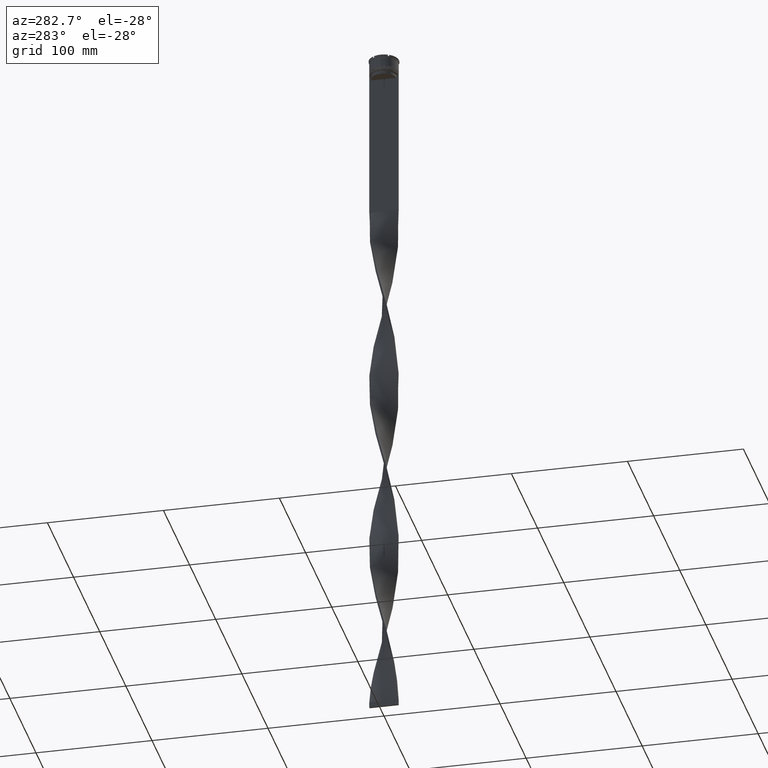
[diagram: clean part render]
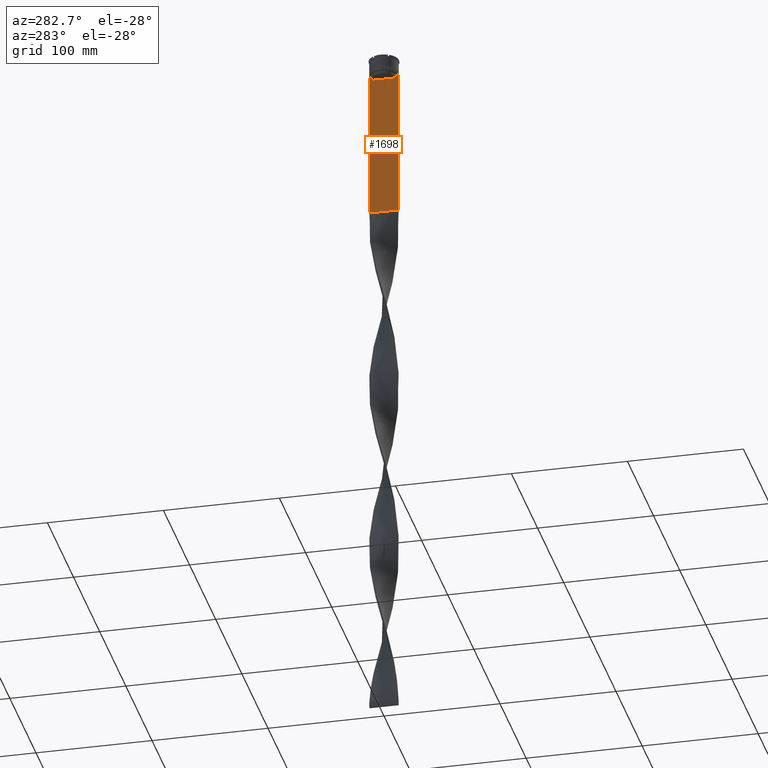
[diagram: same view with one face highlighted and labeled with its STEP entity id]
A machine part, auxiliary view. The second image highlights one B-rep face of the part: STEP entity #1698.
In plain terms, the highlighted planar face has unit normal (-1, 0, 0).
Its self-contained STEP definition (entity closure, byte-faithful):
#10 = CARTESIAN_POINT ( 'NONE',  ( -0.7499999999999997780, -12.50000000000000000, -14.00000000000000178 ) ) ;
#37 = CARTESIAN_POINT ( 'NONE',  ( -0.7499999999999997780, 10.87416663473574374, -14.50000000000000000 ) ) ;
#63 = CARTESIAN_POINT ( 'NONE',  ( -0.7499999999999997780, -11.37530219378809093, -14.00000000000000178 ) ) ;
#74 = CARTESIAN_POINT ( 'NONE',  ( -0.7499999999999997780, -10.87416663473574374, 0.000000000000000000 ) ) ;
#87 = ORIENTED_EDGE ( 'NONE', *, *, #4717, .T. ) ;
#120 = EDGE_CURVE ( 'NONE', #4119, #3851, #319, .T. ) ;
#124 = VECTOR ( 'NONE', #225, 1000.000000000000000 ) ;
#140 = FACE_OUTER_BOUND ( 'NONE', #1699, .T. ) ;
#175 = EDGE_CURVE ( 'NONE', #3188, #1463, #1265, .T. ) ;
#216 = VERTEX_POINT ( 'NONE', #2136 ) ;
#225 = DIRECTION ( 'NONE',  ( 0.000000000000000000, -1.000000000000000000, 0.000000000000000000 ) ) ;
#284 = ORIENTED_EDGE ( 'NONE', *, *, #1735, .F. ) ;
#297 = VERTEX_POINT ( 'NONE', #554 ) ;
#319 = B_SPLINE_CURVE_WITH_KNOTS ( 'NONE', 3,
 ( #3514, #2376, #824, #1994 ),
 .UNSPECIFIED., .F., .F.,
 ( 4, 4 ),
 ( 0.01936090553552769281, 0.02006881572333104116 ),
 .UNSPECIFIED. ) ;
#361 = ORIENTED_EDGE ( 'NONE', *, *, #2209, .F. ) ;
#428 = CARTESIAN_POINT ( 'NONE',  ( -0.7499999999999997780, -11.20826532207830439, -14.16667499063191471 ) ) ;
#552 = CARTESIAN_POINT ( 'NONE',  ( -0.7499999999999997780, 12.50000000000000000, 11.04495957273638673 ) ) ;
#554 = CARTESIAN_POINT ( 'NONE',  ( -0.7499999999999997780, 10.87416663473574019, -17.00000000000000000 ) ) ;
#589 = VECTOR ( 'NONE', #4731, 1000.000000000000000 ) ;
#624 = CARTESIAN_POINT ( 'NONE',  ( -0.7499999999999997780, 10.90000000000000213, -17.00000000000000000 ) ) ;
#695 = EDGE_CURVE ( 'NONE', #2607, #1962, #2332, .T. ) ;
#701 = CARTESIAN_POINT ( 'NONE',  ( -0.7499999999999997780, -11.37530219378809093, -14.00000000000000178 ) ) ;
#824 = CARTESIAN_POINT ( 'NONE',  ( -0.7499999999999997780, 11.04122051153452055, -14.33334204648729582 ) ) ;
#836 = VERTEX_POINT ( 'NONE', #2004 ) ;
#867 = LINE ( 'NONE', #2344, #1920 ) ;
#1105 = DIRECTION ( 'NONE',  ( 0.000000000000000000, 0.000000000000000000, -1.000000000000000000 ) ) ;
#1127 = ORIENTED_EDGE ( 'NONE', *, *, #1942, .F. ) ;
#1265 = LINE ( 'NONE', #2402, #3809 ) ;
#1288 = LINE ( 'NONE', #3485, #1369 ) ;
#1315 = DIRECTION ( 'NONE',  ( 0.000000000000000000, -1.000000000000000000, 0.000000000000000000 ) ) ;
#1355 = LINE ( 'NONE', #552, #4675 ) ;
#1369 = VECTOR ( 'NONE', #1315, 1000.000000000000000 ) ;
#1463 = VERTEX_POINT ( 'NONE', #3653 ) ;
#1571 = ORIENTED_EDGE ( 'NONE', *, *, #3029, .F. ) ;
#1582 = DIRECTION ( 'NONE',  ( -1.000000000000000000, 0.000000000000000000, 0.000000000000000000 ) ) ;
#1607 = EDGE_CURVE ( 'NONE', #2599, #216, #1288, .T. ) ;
#1632 = CARTESIAN_POINT ( 'NONE',  ( -0.7499999999999997780, -12.50000000000000000, 11.04495957273638673 ) ) ;
#1656 = DIRECTION ( 'NONE',  ( 0.000000000000000000, 0.000000000000000000, 1.000000000000000000 ) ) ;
#1698 = ADVANCED_FACE ( 'NONE', ( #140 ), #3541, .T. ) ;
#1699 = EDGE_LOOP ( 'NONE', ( #3531, #284, #2901, #87, #2386, #361, #1127, #3334, #2460, #4211, #4802, #1571 ) ) ;
#1704 = DIRECTION ( 'NONE',  ( 0.000000000000000000, 0.000000000000000000, -1.000000000000000000 ) ) ;
#1735 = EDGE_CURVE ( 'NONE', #216, #4119, #4758, .T. ) ;
#1828 = LINE ( 'NONE', #4059, #4290 ) ;
#1836 = AXIS2_PLACEMENT_3D ( 'NONE', #1632, #1582, #1656 ) ;
#1845 = LINE ( 'NONE', #10, #2400 ) ;
#1872 = CARTESIAN_POINT ( 'NONE',  ( -0.7499999999999997780, -12.50000000000000000, -14.00000000000000178 ) ) ;
#1920 = VECTOR ( 'NONE', #2738, 1000.000000000000000 ) ;
#1942 = EDGE_CURVE ( 'NONE', #836, #3474, #1845, .T. ) ;
#1956 = CARTESIAN_POINT ( 'NONE',  ( -0.7499999999999997780, -10.87416663473574019, -17.00000000000000000 ) ) ;
#1962 = VERTEX_POINT ( 'NONE', #3043 ) ;
#1994 = CARTESIAN_POINT ( 'NONE',  ( -0.7499999999999997780, 10.87416663473574374, -14.50000000000000000 ) ) ;
#2004 = CARTESIAN_POINT ( 'NONE',  ( -0.7499999999999997780, -12.37729776647553059, -14.00000000000000178 ) ) ;
#2067 = VECTOR ( 'NONE', #3749, 1000.000000000000000 ) ;
#2121 = EDGE_CURVE ( 'NONE', #1962, #2135, #3777, .T. ) ;
#2135 = VERTEX_POINT ( 'NONE', #701 ) ;
#2136 = CARTESIAN_POINT ( 'NONE',  ( -0.7499999999999997780, 12.37729776647553059, -14.00000000000000178 ) ) ;
#2209 = EDGE_CURVE ( 'NONE', #3474, #3188, #867, .T. ) ;
#2292 = CARTESIAN_POINT ( 'NONE',  ( -0.7499999999999997780, -11.04122051801870619, -14.33334204001847745 ) ) ;
#2332 = LINE ( 'NONE', #74, #2067 ) ;
#2344 = CARTESIAN_POINT ( 'NONE',  ( -0.7499999999999997780, -12.50000000000000000, 11.04495957273638673 ) ) ;
#2376 = CARTESIAN_POINT ( 'NONE',  ( -0.7499999999999997780, 11.20826531587977648, -14.16667499681701514 ) ) ;
#2386 = ORIENTED_EDGE ( 'NONE', *, *, #175, .F. ) ;
#2400 = VECTOR ( 'NONE', #3783, 1000.000000000000000 ) ;
#2402 = CARTESIAN_POINT ( 'NONE',  ( -0.7499999999999997780, -12.50000000000000000, -143.0000000000000284 ) ) ;
#2460 = ORIENTED_EDGE ( 'NONE', *, *, #2121, .F. ) ;
#2497 = LINE ( 'NONE', #624, #4446 ) ;
#2508 = CARTESIAN_POINT ( 'NONE',  ( -0.7499999999999997780, -12.50000000000000000, -14.00000000000000178 ) ) ;
#2599 = VERTEX_POINT ( 'NONE', #3846 ) ;
#2607 = VERTEX_POINT ( 'NONE', #1956 ) ;
#2697 = EDGE_CURVE ( 'NONE', #2135, #836, #3958, .T. ) ;
#2738 = DIRECTION ( 'NONE',  ( 0.000000000000000000, 0.000000000000000000, -1.000000000000000000 ) ) ;
#2901 = ORIENTED_EDGE ( 'NONE', *, *, #1607, .F. ) ;
#2936 = CARTESIAN_POINT ( 'NONE',  ( -0.7499999999999997780, -12.50000000000000000, -14.00000000000000178 ) ) ;
#3029 = EDGE_CURVE ( 'NONE', #3851, #297, #1828, .T. ) ;
#3043 = CARTESIAN_POINT ( 'NONE',  ( -0.7499999999999997780, -10.87416663473574374, -14.50000000000000000 ) ) ;
#3188 = VERTEX_POINT ( 'NONE', #4224 ) ;
#3334 = ORIENTED_EDGE ( 'NONE', *, *, #2697, .F. ) ;
#3474 = VERTEX_POINT ( 'NONE', #1872 ) ;
#3485 = CARTESIAN_POINT ( 'NONE',  ( -0.7499999999999997780, -12.50000000000000000, -14.00000000000000178 ) ) ;
#3514 = CARTESIAN_POINT ( 'NONE',  ( -0.7499999999999997780, 11.37530219378809093, -14.00000000000000178 ) ) ;
#3531 = ORIENTED_EDGE ( 'NONE', *, *, #120, .F. ) ;
#3541 = PLANE ( 'NONE',  #1836 ) ;
#3653 = CARTESIAN_POINT ( 'NONE',  ( -0.7499999999999997780, 12.50000000000000000, -143.0000000000000284 ) ) ;
#3749 = DIRECTION ( 'NONE',  ( -0.000000000000000000, -0.000000000000000000, 1.000000000000000000 ) ) ;
#3777 = B_SPLINE_CURVE_WITH_KNOTS ( 'NONE', 3,
 ( #4169, #2292, #428, #63 ),
 .UNSPECIFIED., .F., .F.,
 ( 4, 4 ),
 ( 0.05009718908159448147, 0.05081156920313960323 ),
 .UNSPECIFIED. ) ;
#3783 = DIRECTION ( 'NONE',  ( 0.000000000000000000, -1.000000000000000000, 0.000000000000000000 ) ) ;
#3809 = VECTOR ( 'NONE', #3907, 1000.000000000000000 ) ;
#3846 = CARTESIAN_POINT ( 'NONE',  ( -0.7499999999999997780, 12.50000000000000000, -14.00000000000000178 ) ) ;
#3851 = VERTEX_POINT ( 'NONE', #37 ) ;
#3907 = DIRECTION ( 'NONE',  ( 0.000000000000000000, 1.000000000000000000, 0.000000000000000000 ) ) ;
#3958 = LINE ( 'NONE', #2508, #124 ) ;
#4059 = CARTESIAN_POINT ( 'NONE',  ( -0.7499999999999997780, 10.87416663473574374, 0.000000000000000000 ) ) ;
#4064 = EDGE_CURVE ( 'NONE', #297, #2607, #2497, .T. ) ;
#4119 = VERTEX_POINT ( 'NONE', #4403 ) ;
#4169 = CARTESIAN_POINT ( 'NONE',  ( -0.7499999999999997780, -10.87416663473574374, -14.50000000000000000 ) ) ;
#4211 = ORIENTED_EDGE ( 'NONE', *, *, #695, .F. ) ;
#4224 = CARTESIAN_POINT ( 'NONE',  ( -0.7499999999999997780, -12.50000000000000000, -143.0000000000000284 ) ) ;
#4290 = VECTOR ( 'NONE', #1105, 1000.000000000000000 ) ;
#4403 = CARTESIAN_POINT ( 'NONE',  ( -0.7499999999999997780, 11.37530219378809093, -14.00000000000000178 ) ) ;
#4446 = VECTOR ( 'NONE', #4726, 1000.000000000000000 ) ;
#4675 = VECTOR ( 'NONE', #1704, 1000.000000000000000 ) ;
#4717 = EDGE_CURVE ( 'NONE', #2599, #1463, #1355, .T. ) ;
#4726 = DIRECTION ( 'NONE',  ( 0.000000000000000000, -1.000000000000000000, 0.000000000000000000 ) ) ;
#4731 = DIRECTION ( 'NONE',  ( 0.000000000000000000, -1.000000000000000000, 0.000000000000000000 ) ) ;
#4758 = LINE ( 'NONE', #2936, #589 ) ;
#4802 = ORIENTED_EDGE ( 'NONE', *, *, #4064, .F. ) ;